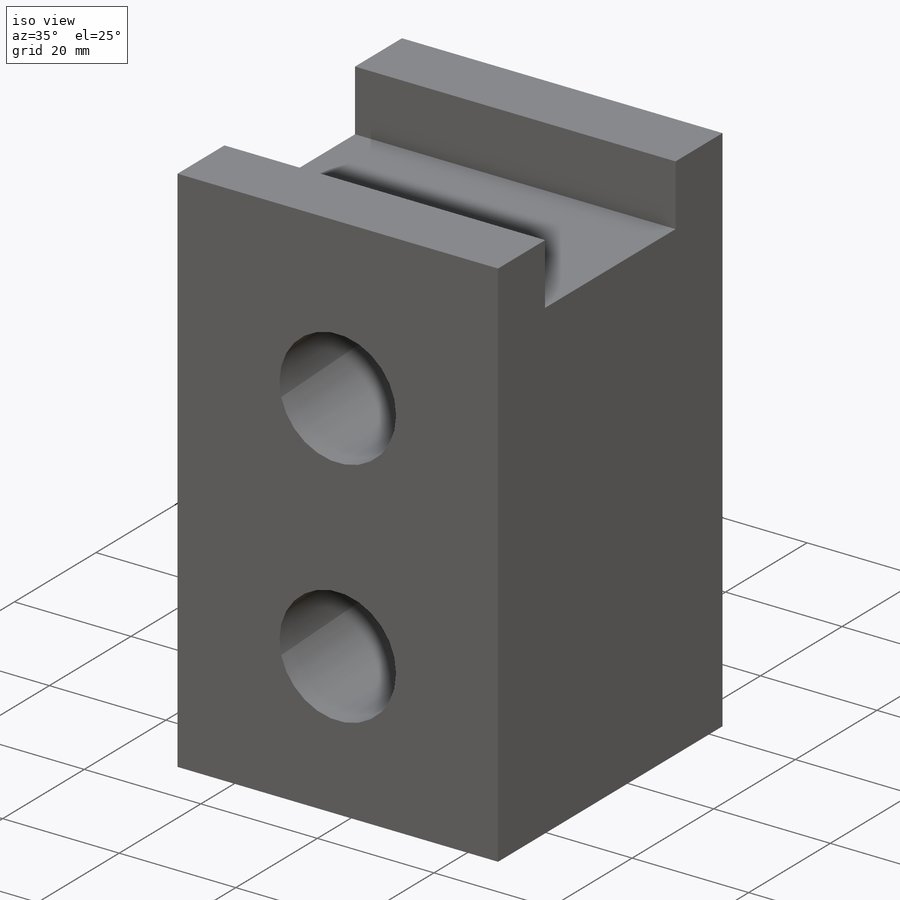
[diagram: iso view]
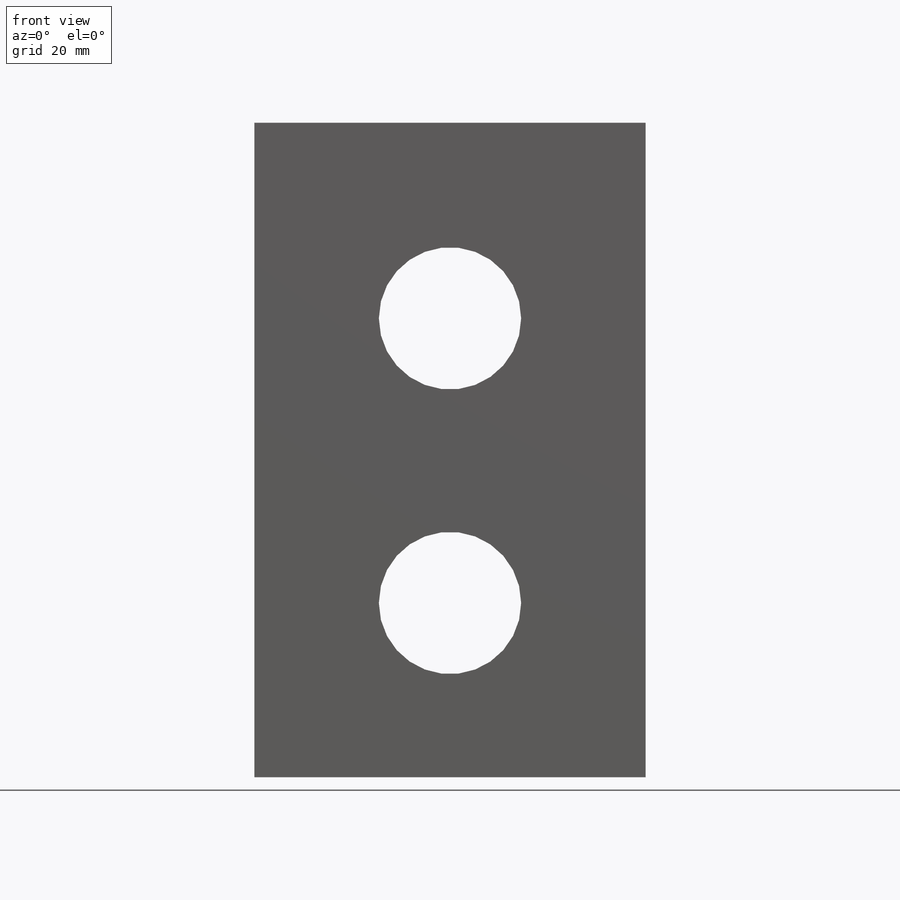
[diagram: front view]
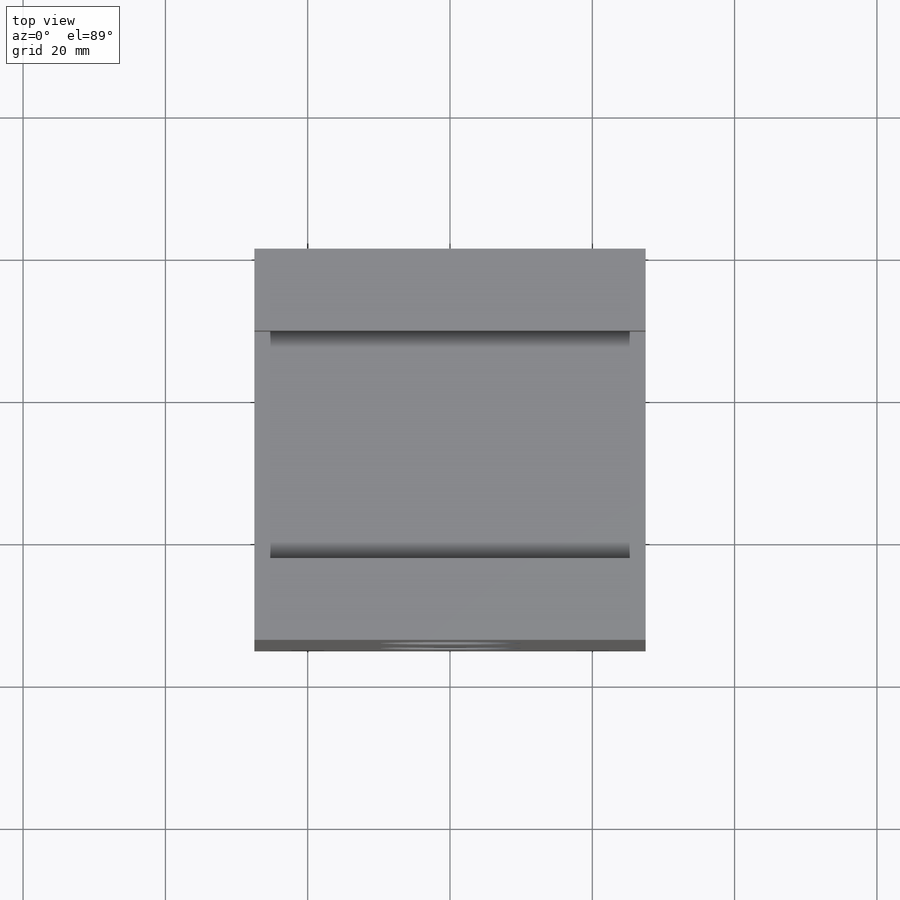
[diagram: top view]
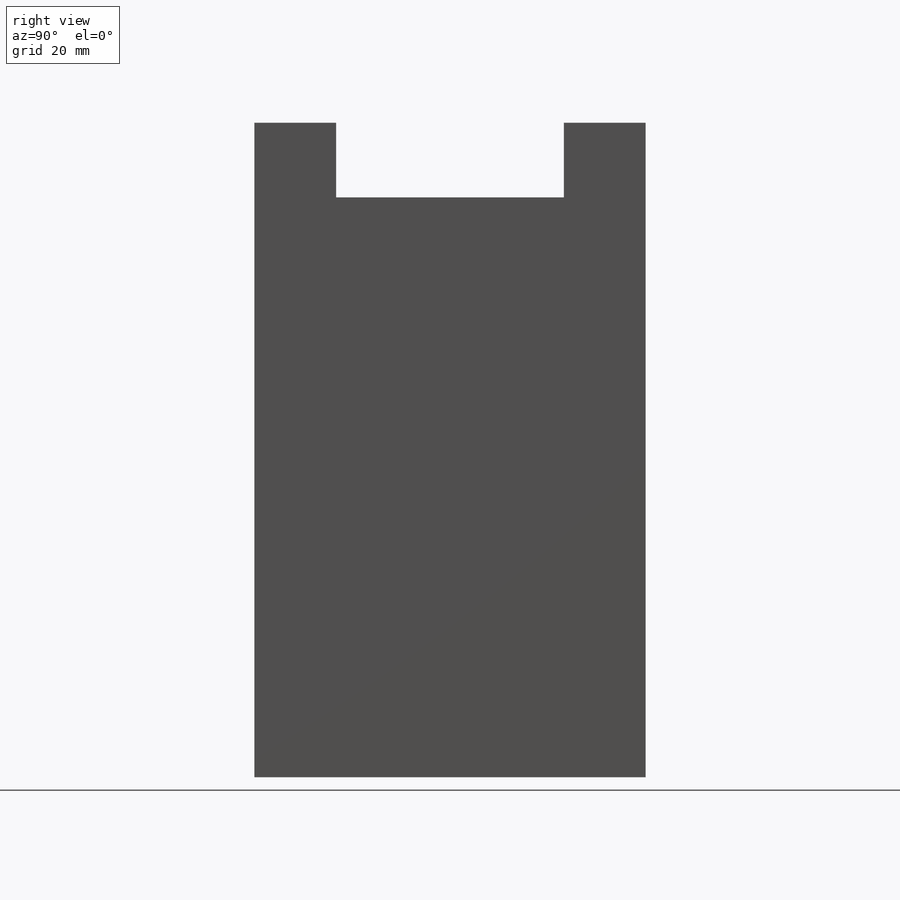
[diagram: right view]
SOLIDWORKS PART (.sldprt)
format: sldprt  version: not decoded by parser v0  size: 151,040 bytes
history: native  units: mm
features: plane x3, sketch x3, cut_extrude x2, material x1, extrude x1 (+10 scaffold rows collapsed)
feature tree (20):
  scaffold x10  (default folders/planes/origin — collapsed)
  material  "Material <sin especificar>"
  plane  "Alzado"
  plane  "Planta"
  plane  "Vista lateral"
  sketch  "Croquis1"  dims[D1=92.0mm D2=55.0mm]
  extrude  "Saliente-Extruir1"  Depth=55mm
  sketch  "Croquis2"  dims[D1=20.0mm D2=20.0mm D3=40.0mm D4=27.5mm]
  cut_extrude  "Cortar-Extruir1"  [1 undecoded]
  sketch  "Croquis3"  dims[c1.D1=~37.742846mm c2.D1=90.0deg c3.D1=~37.742846mm c4.D1=90.0deg c5.D1=10.5mm c5.D2=~37.742846mm c6.D2=90.0deg c6.32=32.0mm c7.D2=11.5mm]
  cut_extrude  "Cortar-Extruir2"  Depth=55mm
decode coverage: 5 of 6 modeling features carry decoded parameters
note: ~ marks probable driven/reference dimensions
note: 1 parameter value undecoded
note: suppression state not decoded; provenance and decode notes live in map.json
